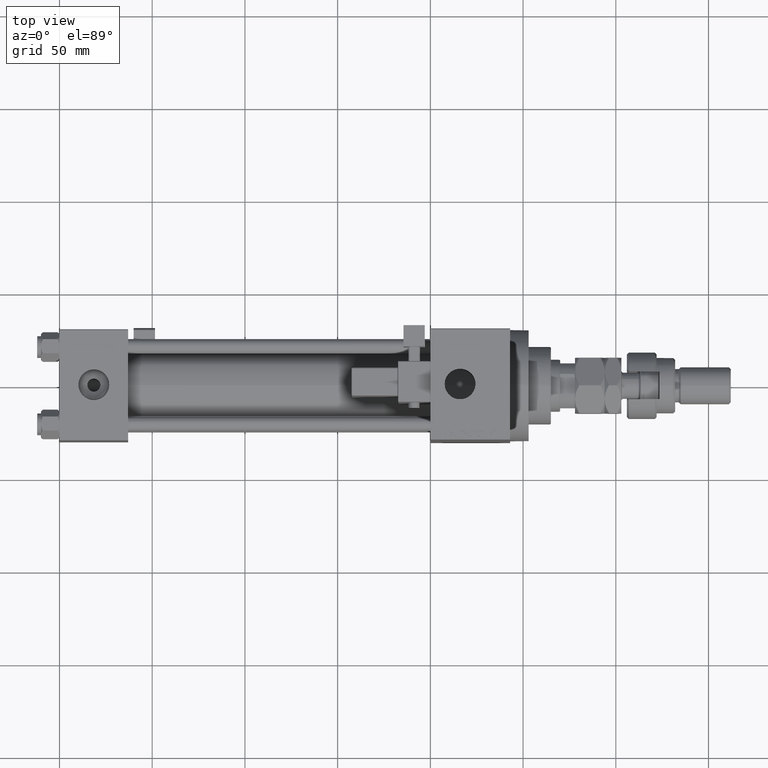
[diagram: clean part render]
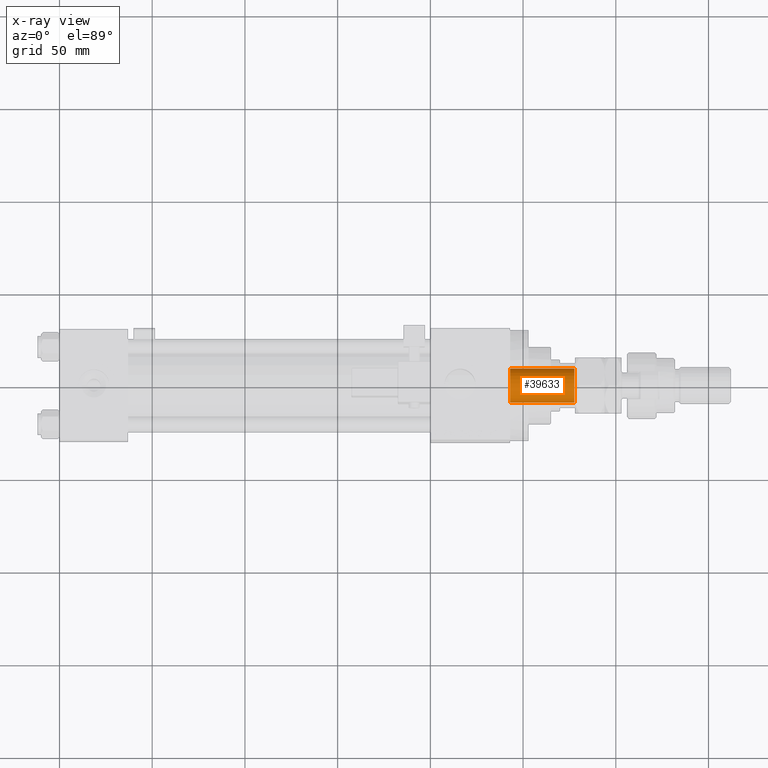
[diagram: x-ray — body ghosted, one internal face saturated and labeled with its STEP entity id]
A machine part, top view, then the same camera in x-ray: the body is ghosted and one INTERNAL B-rep face — a face not visible from any outside direction — is saturated and labeled: STEP entity #39633.
In plain terms, the highlighted cylindrical surface (edge-blend (fillet) strip) has radius 9.25 mm, axis along (1, 0, 0).
Its self-contained STEP definition (entity closure, byte-faithful):
#4337 = CARTESIAN_POINT ( 'NONE',  ( 9.249999999999994671, 0.000000000000000000, 241.0000000000000284 ) ) ;
#4647 = AXIS2_PLACEMENT_3D ( 'NONE', #51271, #10880, #51790 ) ;
#4668 = CARTESIAN_POINT ( 'NONE',  ( 0.000000000000000000, 0.000000000000000000, 240.6999999999999602 ) ) ;
#6928 = EDGE_CURVE ( 'NONE', #42824, #28761, #44085, .T. ) ;
#9158 = ORIENTED_EDGE ( 'NONE', *, *, #21910, .T. ) ;
#9673 = EDGE_LOOP ( 'NONE', ( #24787, #38566, #9158, #12681 ) ) ;
#10880 = DIRECTION ( 'NONE',  ( -0.000000000000000000, -0.000000000000000000, 1.000000000000000000 ) ) ;
#12681 = ORIENTED_EDGE ( 'NONE', *, *, #25767, .F. ) ;
#13238 = VECTOR ( 'NONE', #40101, 1000.000000000000000 ) ;
#15439 = CARTESIAN_POINT ( 'NONE',  ( -9.249999999999992895, 1.132798289211300712E-15, 206.0000000000000284 ) ) ;
#19105 = CIRCLE ( 'NONE', #4647, 9.249999999999992895 ) ;
#19355 = CARTESIAN_POINT ( 'NONE',  ( -9.249999999999994671, 1.132798289211300909E-15, 241.0000000000000284 ) ) ;
#19667 = AXIS2_PLACEMENT_3D ( 'NONE', #4668, #41624, #20886 ) ;
#20562 = DIRECTION ( 'NONE',  ( -0.000000000000000000, -0.000000000000000000, 1.000000000000000000 ) ) ;
#20884 = CARTESIAN_POINT ( 'NONE',  ( 9.249999999999994671, 0.000000000000000000, 240.6999999999999602 ) ) ;
#20886 = DIRECTION ( 'NONE',  ( 1.000000000000000000, 0.000000000000000000, 0.000000000000000000 ) ) ;
#21910 = EDGE_CURVE ( 'NONE', #28761, #38943, #50213, .T. ) ;
#24787 = ORIENTED_EDGE ( 'NONE', *, *, #47909, .F. ) ;
#25767 = EDGE_CURVE ( 'NONE', #35077, #38943, #29314, .T. ) ;
#28221 = AXIS2_PLACEMENT_3D ( 'NONE', #46989, #34751, #42746 ) ;
#28761 = VERTEX_POINT ( 'NONE', #31741 ) ;
#29314 = LINE ( 'NONE', #4337, #49379 ) ;
#30760 = CYLINDRICAL_SURFACE ( 'NONE', #28221, 9.249999999999994671 ) ;
#31741 = CARTESIAN_POINT ( 'NONE',  ( -9.249999999999994671, 1.132798289211300909E-15, 240.6999999999999602 ) ) ;
#32176 = CARTESIAN_POINT ( 'NONE',  ( 9.249999999999992895, 0.000000000000000000, 206.0000000000000284 ) ) ;
#34751 = DIRECTION ( 'NONE',  ( -0.000000000000000000, -0.000000000000000000, 1.000000000000000000 ) ) ;
#35077 = VERTEX_POINT ( 'NONE', #32176 ) ;
#38566 = ORIENTED_EDGE ( 'NONE', *, *, #6928, .T. ) ;
#38753 = FACE_OUTER_BOUND ( 'NONE', #9673, .T. ) ;
#38943 = VERTEX_POINT ( 'NONE', #20884 ) ;
#39633 = ADVANCED_FACE ( 'NONE', ( #38753 ), #30760, .F. ) ;
#40101 = DIRECTION ( 'NONE',  ( -0.000000000000000000, -0.000000000000000000, 1.000000000000000000 ) ) ;
#41624 = DIRECTION ( 'NONE',  ( 0.000000000000000000, 0.000000000000000000, 1.000000000000000000 ) ) ;
#42746 = DIRECTION ( 'NONE',  ( 1.000000000000000000, 0.000000000000000000, 0.000000000000000000 ) ) ;
#42824 = VERTEX_POINT ( 'NONE', #15439 ) ;
#44085 = LINE ( 'NONE', #19355, #13238 ) ;
#46989 = CARTESIAN_POINT ( 'NONE',  ( 0.000000000000000000, 0.000000000000000000, 241.0000000000000284 ) ) ;
#47909 = EDGE_CURVE ( 'NONE', #42824, #35077, #19105, .T. ) ;
#49379 = VECTOR ( 'NONE', #20562, 1000.000000000000000 ) ;
#50213 = CIRCLE ( 'NONE', #19667, 9.249999999999994671 ) ;
#51271 = CARTESIAN_POINT ( 'NONE',  ( 0.000000000000000000, 0.000000000000000000, 206.0000000000000284 ) ) ;
#51790 = DIRECTION ( 'NONE',  ( 1.000000000000000000, 0.000000000000000000, 0.000000000000000000 ) ) ;